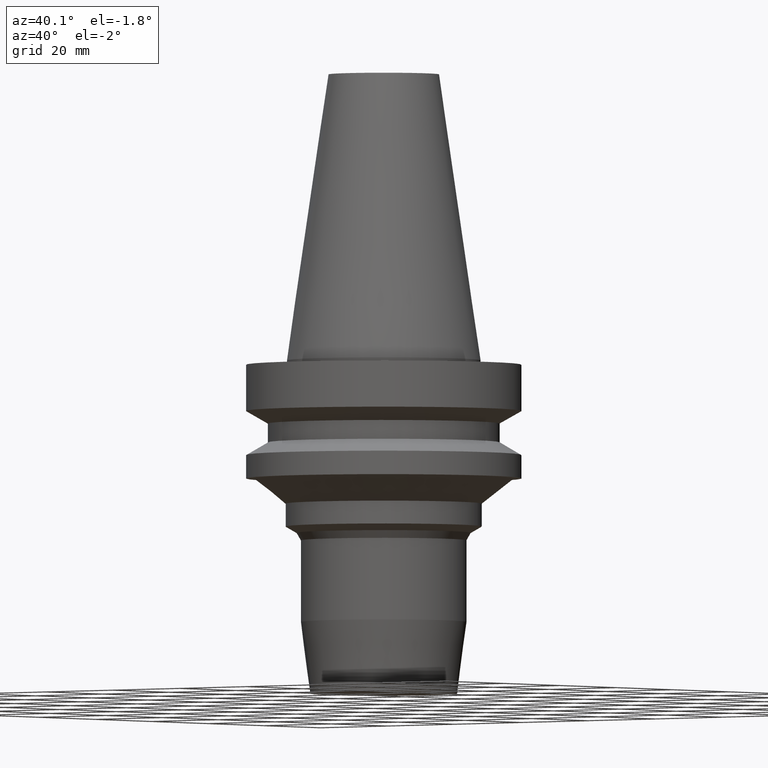
[diagram: clean part render]
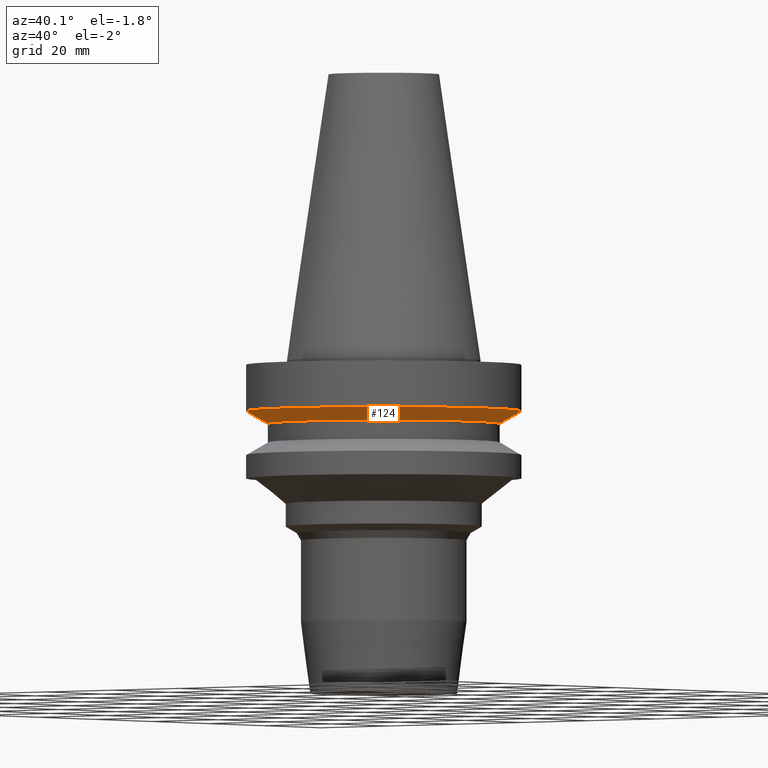
[diagram: same view with one face highlighted and labeled with its STEP entity id]
A machine part, auxiliary view. The second image highlights one B-rep face of the part: STEP entity #124.
In plain terms, the highlighted conical surface has half-angle 60 deg.
Its self-contained STEP definition (entity closure, byte-faithful):
#117=EDGE_CURVE('Unnamed[1]',#253,#253,#254,.T.);
#124=ADVANCED_FACE('Unnamed[1]',(#263,#264),#265,.T.);
#132=EDGE_CURVE('Unnamed[1]',#277,#277,#278,.T.);
#253=VERTEX_POINT('',#417);
#254=CIRCLE('',#418,26.4999999999994);
#263=FACE_BOUND('',#430,.T.);
#264=FACE_BOUND('',#431,.T.);
#265=CONICAL_SURFACE('',#432,28.9999999999999,1.04719755119657);
#277=VERTEX_POINT('',#447);
#278=CIRCLE('',#448,31.5000000000004);
#417=CARTESIAN_POINT('',(8.8494551369045E-016,26.4999999999995,-14.4522569986152));
#418=AXIS2_PLACEMENT_3D('',#573,#574,#575);
#430=EDGE_LOOP('',(#583));
#431=EDGE_LOOP('',(#584));
#432=AXIS2_PLACEMENT_3D('',#585,#586,#587);
#447=CARTESIAN_POINT('',(7.08182973902924E-016,31.5000000000004,-11.5655056526664));
#448=AXIS2_PLACEMENT_3D('',#600,#601,#602);
#573=CARTESIAN_POINT('',(8.84945513690449E-016,2.29631851644621E-014,-14.4522569986152));
#574=DIRECTION('',(6.12323399573677E-017,-6.70422349373967E-016,-1.0));
#575=DIRECTION('',(3.62243764811148E-032,1.0,-6.70422349373967E-016));
#583=ORIENTED_EDGE('',*,*,#117,.F.);
#584=ORIENTED_EDGE('',*,*,#132,.T.);
#585=CARTESIAN_POINT('',(7.96564243796686E-016,2.39308564741669E-014,-13.0088813256408));
#586=DIRECTION('',(-6.12323399573677E-017,6.70422349373967E-016,1.0));
#587=DIRECTION('',(3.62243764811148E-032,1.0,-6.70422349373967E-016));
#600=CARTESIAN_POINT('',(7.08182973902922E-016,2.48985277838716E-014,-11.5655056526663));
#601=DIRECTION('',(6.12323399573677E-017,-6.70422349373967E-016,-1.0));
#602=DIRECTION('',(3.62243764811148E-032,1.0,-6.70422349373967E-016));